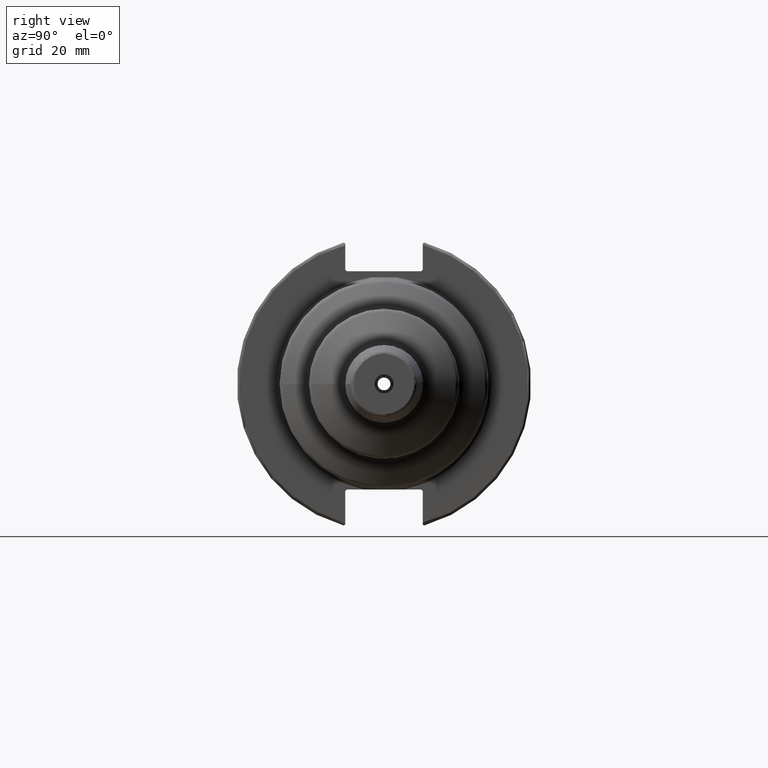
[diagram: clean part render]
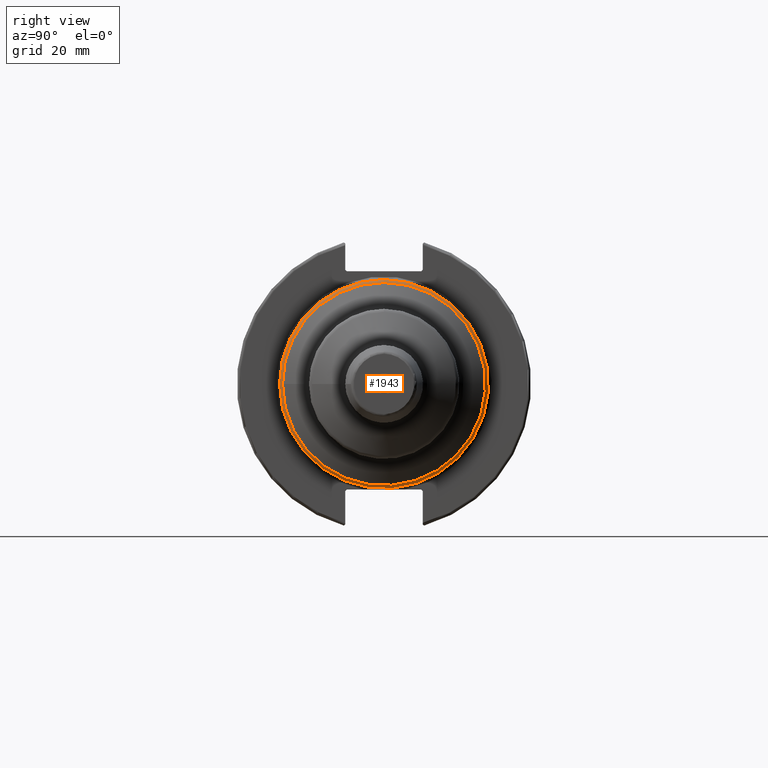
[diagram: same view with one face highlighted and labeled with its STEP entity id]
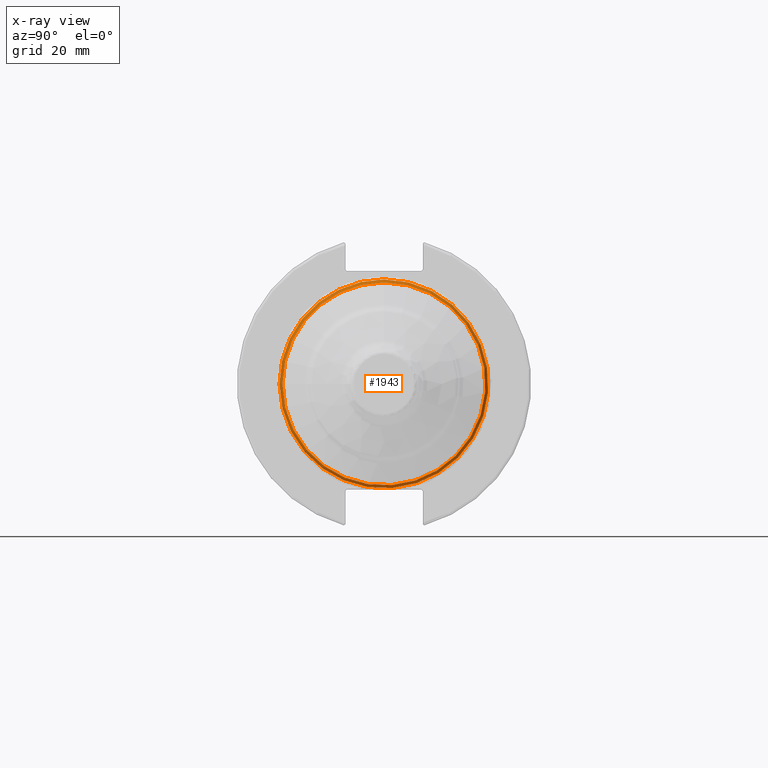
[diagram: x-ray of the same camera — body ghosted, the highlighted face saturated]
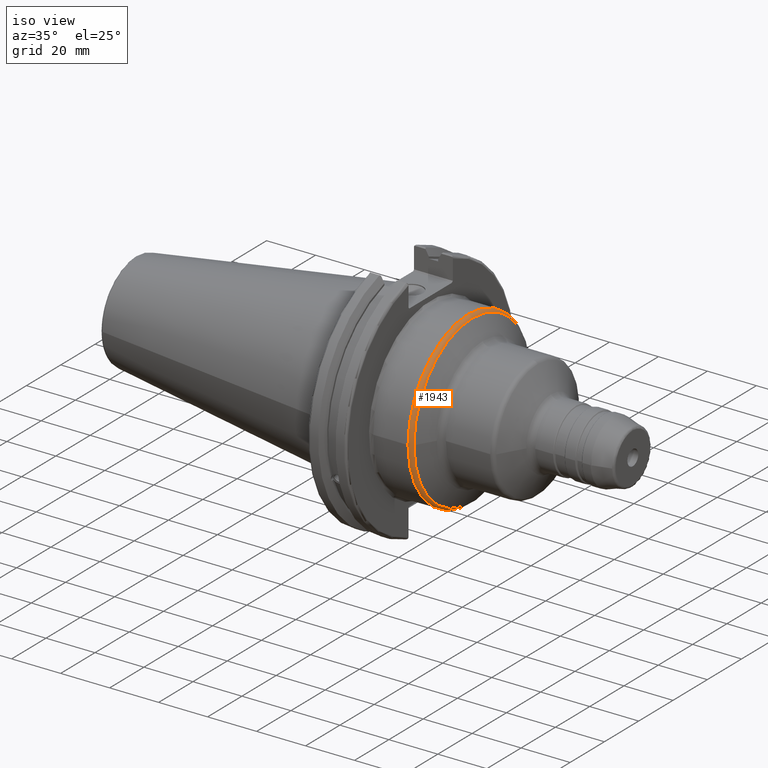
[diagram: same view with one face highlighted and labeled with its STEP entity id]
A machine part, right view. The second image highlights one B-rep face of the part: STEP entity #1943.
The next image is the same camera in x-ray: the body ghosted, the highlighted face saturated — about 0% of this face is hidden behind the body in this view.
A second angle (iso view) of the same face is appended — the face is thin or edge-on in the first view.
In plain terms, the highlighted toroidal blend (fillet) surface has major radius 32.95 mm and minor (blend) radius 2 mm.
Its self-contained STEP definition (entity closure, byte-faithful):
#81=TOROIDAL_SURFACE('',#2144,32.95,2.);
#198=FACE_OUTER_BOUND('',#312,.T.);
#312=EDGE_LOOP('',(#1437,#1438,#1439,#1440,#1441,#1442));
#690=CIRCLE('',#2140,33.95);
#691=CIRCLE('',#2141,33.95);
#693=CIRCLE('',#2145,2.);
#694=CIRCLE('',#2146,34.95);
#695=CIRCLE('',#2147,34.95);
#823=VERTEX_POINT('',#3154);
#824=VERTEX_POINT('',#3156);
#825=VERTEX_POINT('',#3162);
#826=VERTEX_POINT('',#3164);
#1053=EDGE_CURVE('',#824,#823,#690,.T.);
#1054=EDGE_CURVE('',#823,#824,#691,.T.);
#1056=EDGE_CURVE('',#824,#825,#693,.T.);
#1057=EDGE_CURVE('',#825,#826,#694,.T.);
#1058=EDGE_CURVE('',#826,#825,#695,.T.);
#1437=ORIENTED_EDGE('',*,*,#1053,.T.);
#1438=ORIENTED_EDGE('',*,*,#1054,.T.);
#1439=ORIENTED_EDGE('',*,*,#1056,.T.);
#1440=ORIENTED_EDGE('',*,*,#1057,.T.);
#1441=ORIENTED_EDGE('',*,*,#1058,.T.);
#1442=ORIENTED_EDGE('',*,*,#1056,.F.);
#1943=ADVANCED_FACE('',(#198),#81,.T.);
#2140=AXIS2_PLACEMENT_3D('',#3157,#2502,#2503);
#2141=AXIS2_PLACEMENT_3D('',#3158,#2504,#2505);
#2144=AXIS2_PLACEMENT_3D('',#3161,#2510,#2511);
#2145=AXIS2_PLACEMENT_3D('',#3163,#2512,#2513);
#2146=AXIS2_PLACEMENT_3D('',#3165,#2514,#2515);
#2147=AXIS2_PLACEMENT_3D('',#3166,#2516,#2517);
#2502=DIRECTION('center_axis',(-1.,0.,0.));
#2503=DIRECTION('ref_axis',(0.,-1.,3.06161699786838E-17));
#2504=DIRECTION('center_axis',(-1.,0.,0.));
#2505=DIRECTION('ref_axis',(0.,-1.,3.06161699786838E-17));
#2510=DIRECTION('center_axis',(1.,0.,0.));
#2511=DIRECTION('ref_axis',(0.,0.,-1.));
#2512=DIRECTION('center_axis',(0.,-1.,-1.22464679914735E-16));
#2513=DIRECTION('ref_axis',(0.,-1.22464679914735E-16,1.));
#2514=DIRECTION('center_axis',(1.,0.,0.));
#2515=DIRECTION('ref_axis',(0.,-1.,1.83697019872103E-16));
#2516=DIRECTION('center_axis',(1.,0.,0.));
#2517=DIRECTION('ref_axis',(0.,-1.,1.83697019872103E-16));
#3154=CARTESIAN_POINT('',(36.0048838744015,-33.95,-4.15767588310526E-15));
#3156=CARTESIAN_POINT('',(36.0048838744015,-4.15767588310526E-15,33.95));
#3157=CARTESIAN_POINT('Origin',(36.0048838744015,0.,-5.19709485388158E-15));
#3158=CARTESIAN_POINT('Origin',(36.0048838744015,0.,-5.19709485388158E-15));
#3161=CARTESIAN_POINT('Origin',(34.2728330668327,0.,0.));
#3162=CARTESIAN_POINT('',(34.2728330668327,-4.28014056302E-15,34.95));
#3163=CARTESIAN_POINT('Origin',(34.2728330668327,-4.03521120319053E-15,
32.95));
#3164=CARTESIAN_POINT('',(34.2728330668327,-34.95,-4.28014056302E-15));
#3165=CARTESIAN_POINT('Origin',(34.2728330668327,0.,0.));
#3166=CARTESIAN_POINT('Origin',(34.2728330668327,0.,0.));